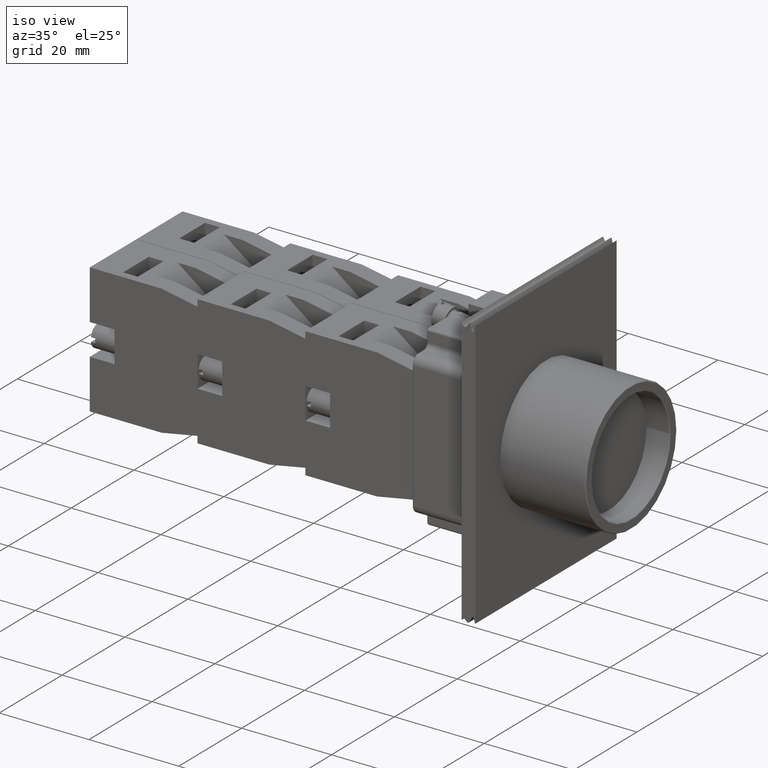
[diagram: clean part render]
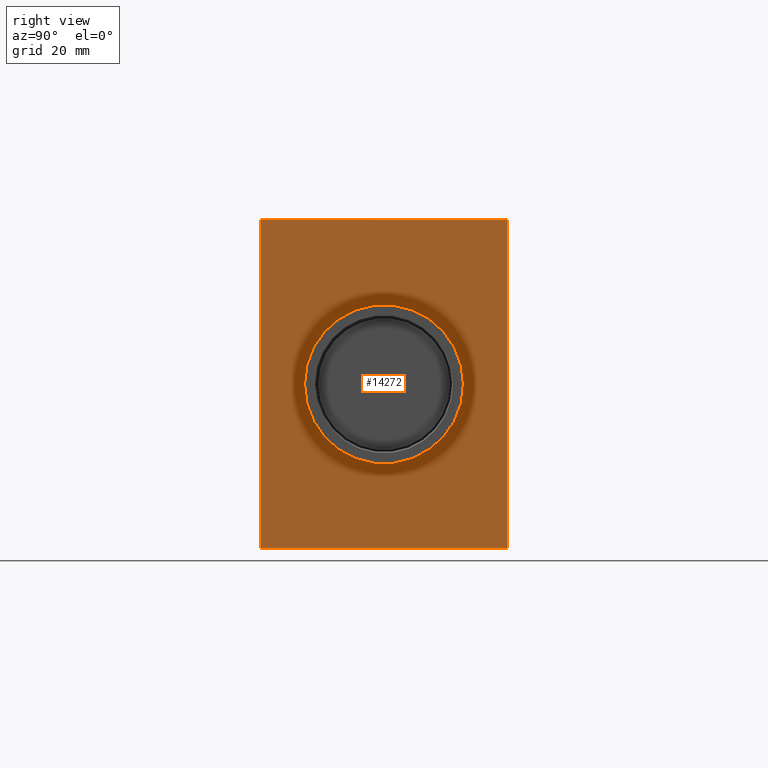
[diagram: tour spotlight — one face highlighted and labeled with its STEP entity id]
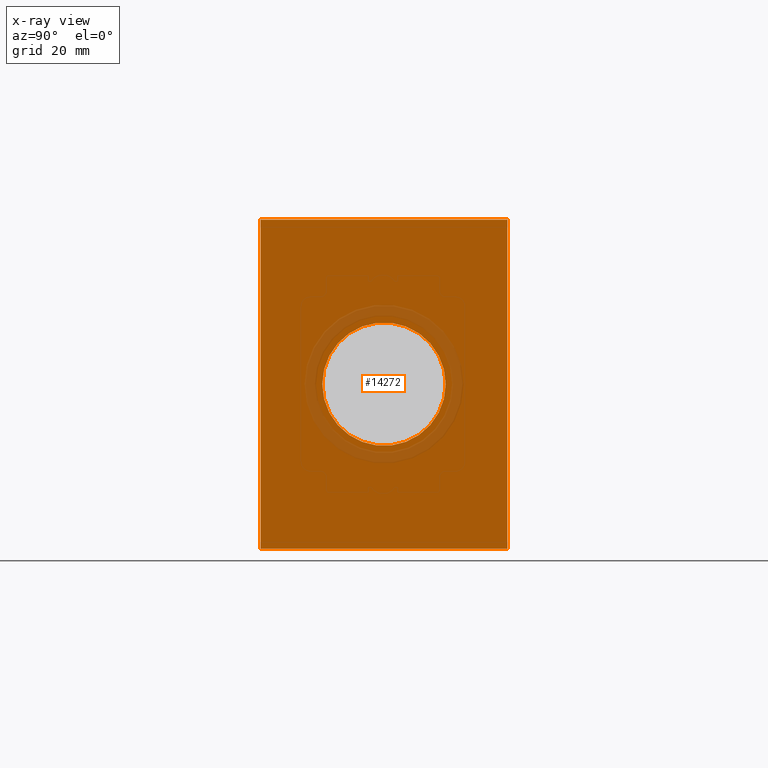
[diagram: x-ray of the same camera — body ghosted, this tour face saturated]
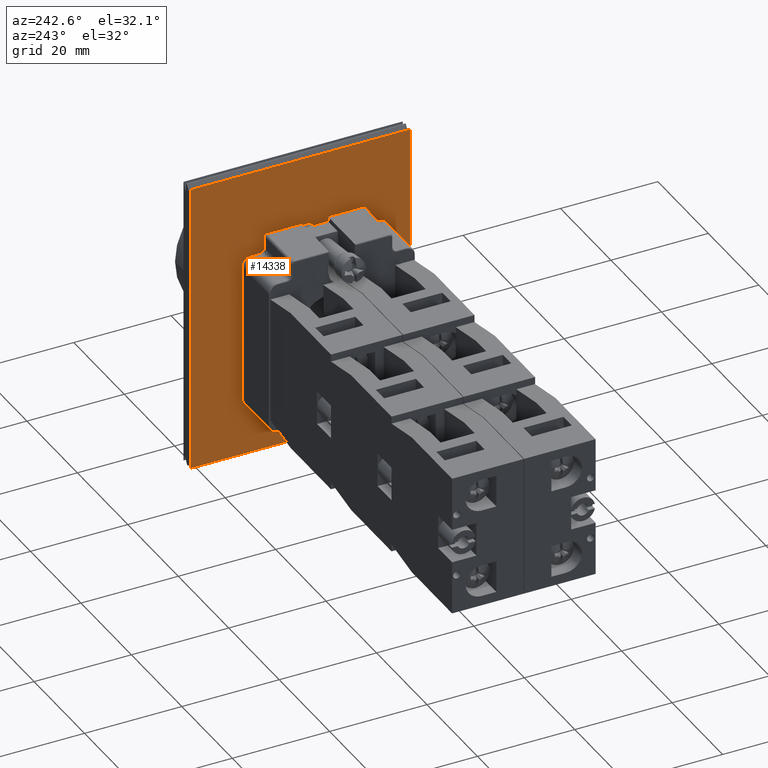
[diagram: tour spotlight — one face highlighted and labeled with its STEP entity id]
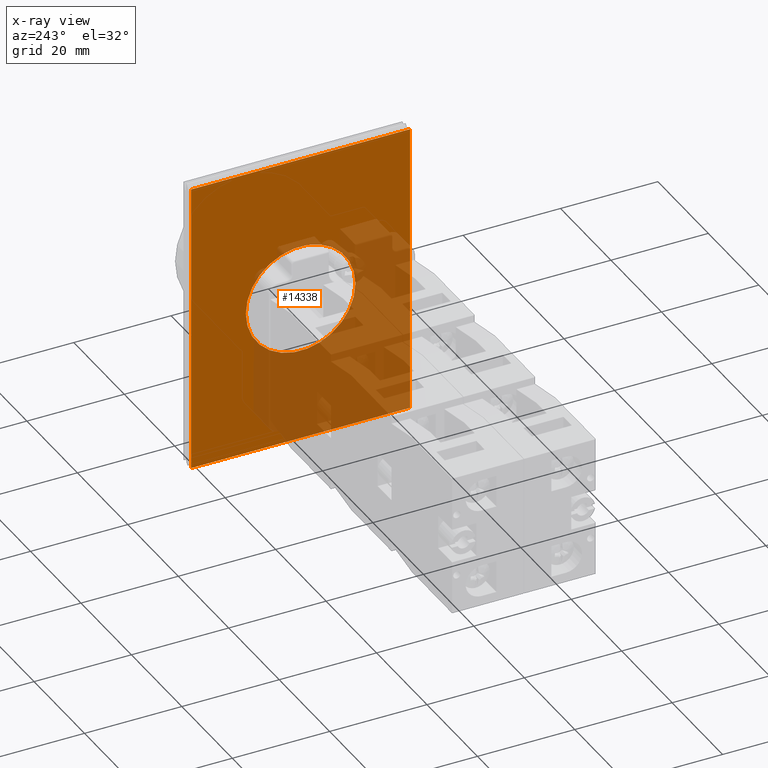
[diagram: x-ray of the same camera — body ghosted, this tour face saturated]
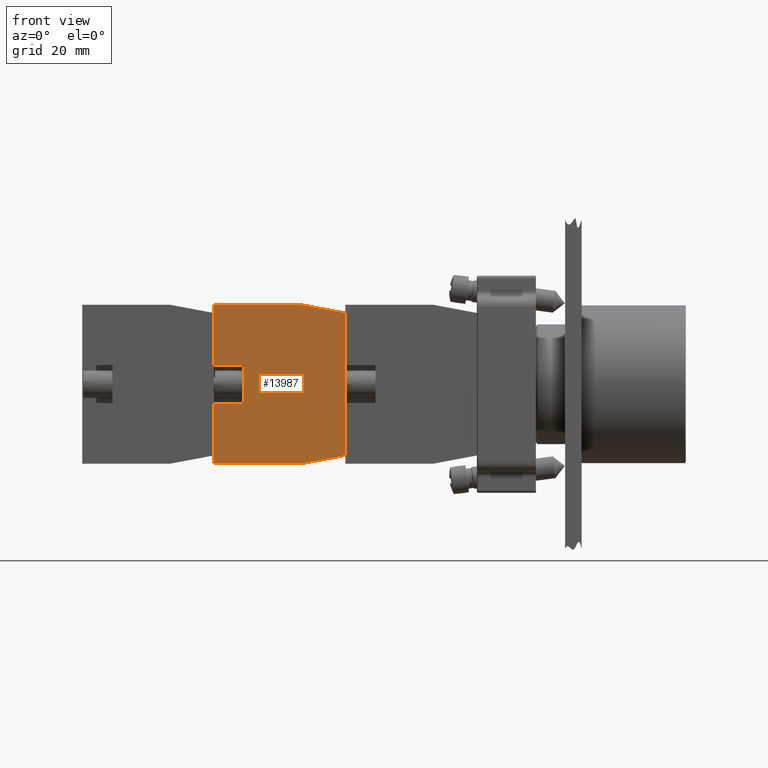
[diagram: tour spotlight — one face highlighted and labeled with its STEP entity id]
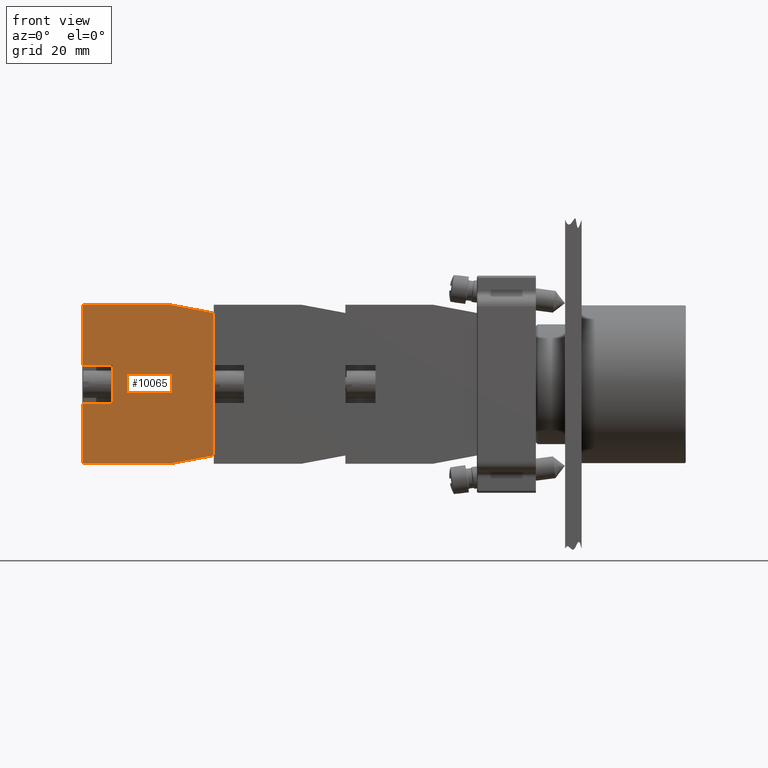
[diagram: tour spotlight — one face highlighted and labeled with its STEP entity id]
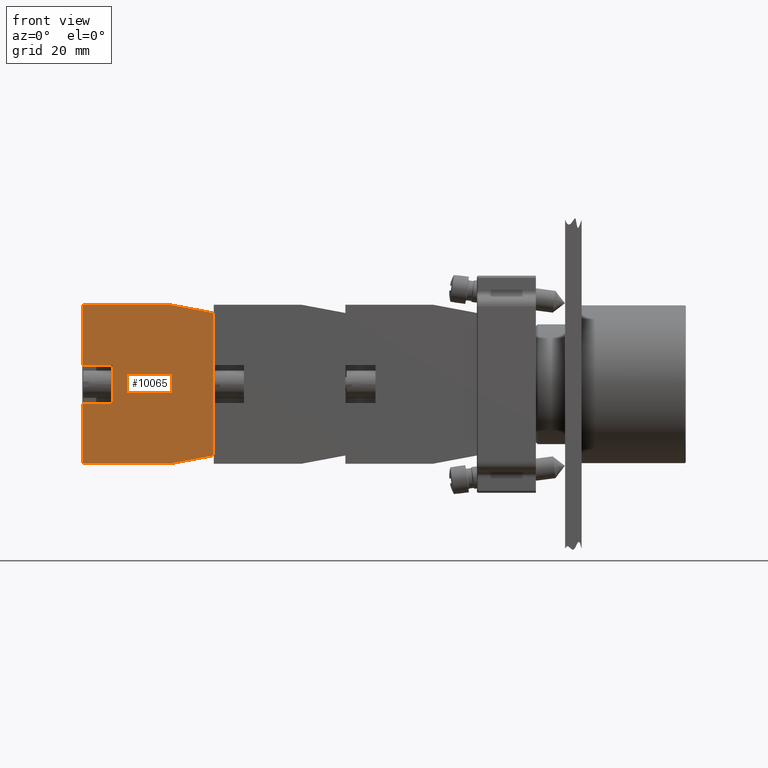
[diagram: tour spotlight — one face highlighted and labeled with its STEP entity id]
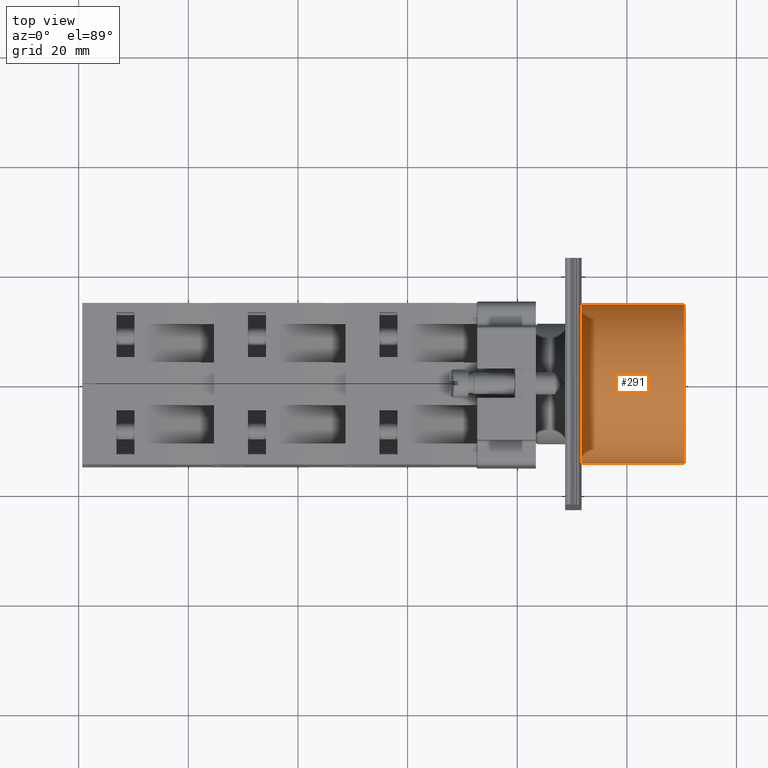
[diagram: tour spotlight — one face highlighted and labeled with its STEP entity id]
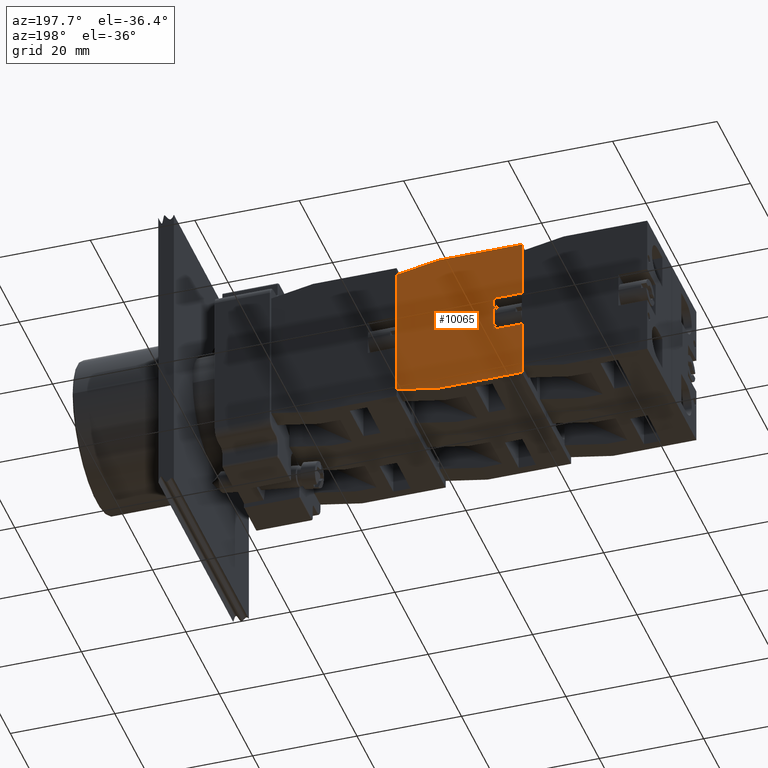
[diagram: tour spotlight — one face highlighted and labeled with its STEP entity id]
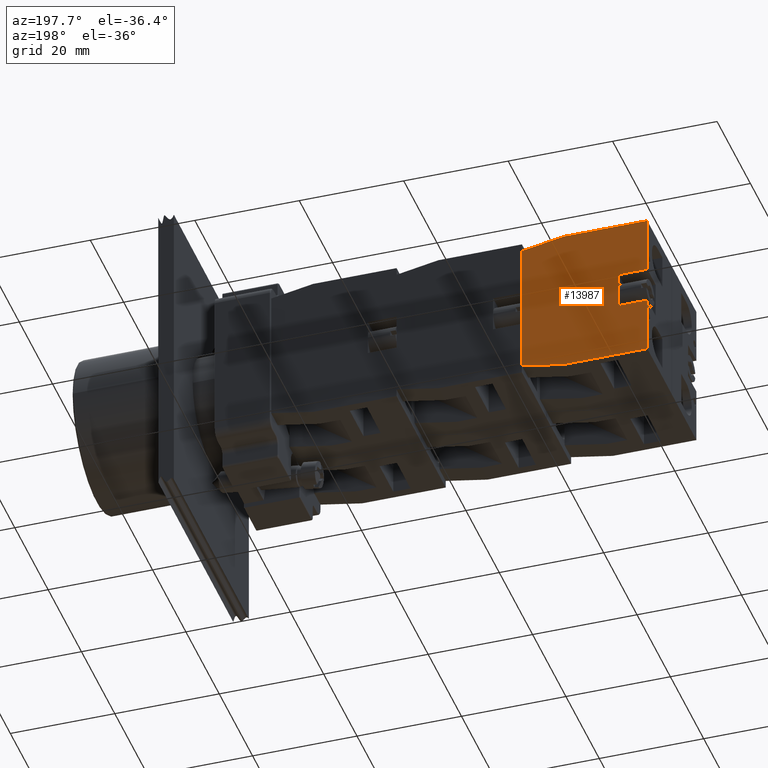
[diagram: tour spotlight — one face highlighted and labeled with its STEP entity id]
A machine part: a face-by-face anatomy tour. The part has 1213 B-rep faces; the first image is the clean iso view, then the 8 largest visible faces are spotlighted one at a time (largest first), each with its STEP entity span.

Face 1 — right view, entity #14272. An x-ray twin of the same camera follows (body ghosted, this face saturated) — the face is partly hidden behind the body. In plain terms, the highlighted planar face has unit normal (1, 0, 0).
Definition (entity closure, byte-faithful):
#14177=CARTESIAN_POINT('',(-12.704183619849175,-32.725398273954283,11.250000000000000));
#14178=VERTEX_POINT('',#14177);
#14179=CARTESIAN_POINT('',(-12.704183619849179,-32.725398273954283,22.500000000000000));
#14180=DIRECTION('',(-1.0,0.0,0.0));
#14181=DIRECTION('',(0.0,0.0,1.0));
#14182=AXIS2_PLACEMENT_3D('',#14179,#14180,#14181);
#14183=CIRCLE('',#14182,11.250000000000000);
#14184=EDGE_CURVE('',#14178,#14178,#14183,.T.);
#14202=CARTESIAN_POINT('',(-12.704183619849179,-2.725398273954287,45.0));
#14203=VERTEX_POINT('',#14202);
#14212=CARTESIAN_POINT('',(-12.704183619849179,-2.725398273954287,0.0));
#14213=VERTEX_POINT('',#14212);
#14214=CARTESIAN_POINT('',(-12.704183619849179,-2.725398273954287,0.0));
#14215=DIRECTION('',(0.0,0.0,1.0));
#14216=VECTOR('',#14215,45.0);
#14217=LINE('',#14214,#14216);
#14218=EDGE_CURVE('',#14213,#14203,#14217,.T.);
#14239=CARTESIAN_POINT('',(-12.704183619849179,-2.725398273954287,0.0));
#14240=DIRECTION('',(1.0,0.0,0.0));
#14241=DIRECTION('',(0.0,0.0,-1.0));
#14242=AXIS2_PLACEMENT_3D('',#14239,#14240,#14241);
#14243=PLANE('',#14242);
#14244=CARTESIAN_POINT('',(-12.704183619849172,-62.725398273954283,45.0));
#14245=VERTEX_POINT('',#14244);
#14246=CARTESIAN_POINT('',(-12.704183619849179,-2.725398273954287,45.0));
#14247=DIRECTION('',(0.0,-1.0,0.0));
#14248=VECTOR('',#14247,60.0);
#14249=LINE('',#14246,#14248);
#14250=EDGE_CURVE('',#14203,#14245,#14249,.T.);
#14251=ORIENTED_EDGE('',*,*,#14250,.T.);
#14252=CARTESIAN_POINT('',(-12.704183619849172,-62.725398273954283,0.0));
#14253=VERTEX_POINT('',#14252);
#14254=CARTESIAN_POINT('',(-12.704183619849172,-62.725398273954283,0.0));
#14255=DIRECTION('',(0.0,0.0,1.0));
#14256=VECTOR('',#14255,45.0);
#14257=LINE('',#14254,#14256);
#14258=EDGE_CURVE('',#14253,#14245,#14257,.T.);
#14259=ORIENTED_EDGE('',*,*,#14258,.F.);
#14260=CARTESIAN_POINT('',(-12.704183619849172,-62.725398273954283,0.0));
#14261=DIRECTION('',(0.0,1.0,0.0));
#14262=VECTOR('',#14261,60.0);
#14263=LINE('',#14260,#14262);
#14264=EDGE_CURVE('',#14253,#14213,#14263,.T.);
#14265=ORIENTED_EDGE('',*,*,#14264,.T.);
#14266=ORIENTED_EDGE('',*,*,#14218,.T.);
#14267=EDGE_LOOP('',(#14251,#14259,#14265,#14266));
#14268=FACE_OUTER_BOUND('',#14267,.T.);
#14269=ORIENTED_EDGE('',*,*,#14184,.T.);
#14270=EDGE_LOOP('',(#14269));
#14271=FACE_BOUND('',#14270,.T.);
#14272=ADVANCED_FACE('',(#14268,#14271),#14243,.T.);

Face 2 — auxiliary view, entity #14338. An x-ray twin of the same camera follows (body ghosted, this face saturated) — the face is partly hidden behind the body. In plain terms, the highlighted planar face has unit normal (-1, -0, -0).
Definition (entity closure, byte-faithful):
#14166=CARTESIAN_POINT('',(-15.704183619849179,-32.725398273954283,11.250000000000000));
#14167=VERTEX_POINT('',#14166);
#14168=CARTESIAN_POINT('',(-15.704183619849179,-32.725398273954283,22.500000000000000));
#14169=DIRECTION('',(1.0,0.0,0.0));
#14170=DIRECTION('',(0.0,0.0,1.0));
#14171=AXIS2_PLACEMENT_3D('',#14168,#14169,#14170);
#14172=CIRCLE('',#14171,11.250000000000000);
#14173=EDGE_CURVE('',#14167,#14167,#14172,.T.);
#14200=CARTESIAN_POINT('',(-15.704183619849179,-2.725398273954287,45.0));
#14201=VERTEX_POINT('',#14200);
#14220=CARTESIAN_POINT('',(-15.704183619849179,-2.725398273954287,0.0));
#14221=VERTEX_POINT('',#14220);
#14230=CARTESIAN_POINT('',(-15.704183619849179,-2.725398273954287,0.0));
#14231=DIRECTION('',(0.0,0.0,1.0));
#14232=VECTOR('',#14231,45.0);
#14233=LINE('',#14230,#14232);
#14234=EDGE_CURVE('',#14221,#14201,#14233,.T.);
#14284=CARTESIAN_POINT('',(-15.704183619849179,-62.725398273954283,45.0));
#14285=VERTEX_POINT('',#14284);
#14294=CARTESIAN_POINT('',(-15.704183619849179,-62.725398273954283,0.0));
#14295=VERTEX_POINT('',#14294);
#14296=CARTESIAN_POINT('',(-15.704183619849179,-62.725398273954283,0.0));
#14297=DIRECTION('',(0.0,0.0,1.0));
#14298=VECTOR('',#14297,45.0);
#14299=LINE('',#14296,#14298);
#14300=EDGE_CURVE('',#14295,#14285,#14299,.T.);
#14314=CARTESIAN_POINT('',(-15.704183619849179,-62.725398273954283,0.0));
#14315=DIRECTION('',(-1.0,0.0,0.0));
#14316=DIRECTION('',(0.0,0.0,1.0));
#14317=AXIS2_PLACEMENT_3D('',#14314,#14315,#14316);
#14318=PLANE('',#14317);
#14319=CARTESIAN_POINT('',(-15.704183619849179,-62.725398273954283,45.0));
#14320=DIRECTION('',(0.0,1.0,0.0));
#14321=VECTOR('',#14320,60.0);
#14322=LINE('',#14319,#14321);
#14323=EDGE_CURVE('',#14285,#14201,#14322,.T.);
#14324=ORIENTED_EDGE('',*,*,#14323,.T.);
#14325=ORIENTED_EDGE('',*,*,#14234,.F.);
#14326=CARTESIAN_POINT('',(-15.704183619849179,-2.725398273954287,0.0));
#14327=DIRECTION('',(0.0,-1.0,0.0));
#14328=VECTOR('',#14327,60.0);
#14329=LINE('',#14326,#14328);
#14330=EDGE_CURVE('',#14221,#14295,#14329,.T.);
#14331=ORIENTED_EDGE('',*,*,#14330,.T.);
#14332=ORIENTED_EDGE('',*,*,#14300,.T.);
#14333=EDGE_LOOP('',(#14324,#14325,#14331,#14332));
#14334=FACE_OUTER_BOUND('',#14333,.T.);
#14335=ORIENTED_EDGE('',*,*,#14173,.T.);
#14336=EDGE_LOOP('',(#14335));
#14337=FACE_BOUND('',#14336,.T.);
#14338=ADVANCED_FACE('',(#14334,#14337),#14318,.T.);

Face 3 — front view, entity #13987. In plain terms, the highlighted planar face has unit normal (-0, -1, 0).
Definition (entity closure, byte-faithful):
#12290=CARTESIAN_POINT('',(-44.936741828918457,7.797073323279626,14.699999999999999));
#12291=VERTEX_POINT('',#12290);
#12298=CARTESIAN_POINT('',(-44.936741828918471,23.797073323279623,14.699999999999999));
#12299=VERTEX_POINT('',#12298);
#12300=CARTESIAN_POINT('',(-44.936741828918457,7.797073323279626,14.699999999999999));
#12301=DIRECTION('',(0.0,1.0,0.0));
#12302=VECTOR('',#12301,15.999999999999996);
#12303=LINE('',#12300,#12302);
#12304=EDGE_CURVE('',#12291,#12299,#12303,.T.);
#12371=CARTESIAN_POINT('',(-43.436741828918457,-0.202926676720380,14.699999999999999));
#12372=VERTEX_POINT('',#12371);
#12379=CARTESIAN_POINT('',(-43.436741828918457,-0.202926676720380,14.699999999999999));
#12380=DIRECTION('',(-0.184288535050185,0.982872186934322,0.0));
#12381=VECTOR('',#12380,8.139410298049860);
#12382=LINE('',#12379,#12381);
#12383=EDGE_CURVE('',#12372,#12291,#12382,.T.);
#12522=CARTESIAN_POINT('',(-17.436741828918457,-0.202926676720377,14.699999999999999));
#12523=VERTEX_POINT('',#12522);
#12530=CARTESIAN_POINT('',(-17.436741828918457,-0.202926676720377,14.699999999999999));
#12531=DIRECTION('',(-1.0,0.0,0.0));
#12532=VECTOR('',#12531,26.0);
#12533=LINE('',#12530,#12532);
#12534=EDGE_CURVE('',#12523,#12372,#12533,.T.);
#12615=CARTESIAN_POINT('',(-15.936741828918466,7.797073323279626,14.699999999999999));
#12616=VERTEX_POINT('',#12615);
#12623=CARTESIAN_POINT('',(-15.936741828918466,7.797073323279626,14.699999999999999));
#12624=DIRECTION('',(-0.184288535050184,-0.982872186934322,0.0));
#12625=VECTOR('',#12624,8.139410298049855);
#12626=LINE('',#12623,#12625);
#12627=EDGE_CURVE('',#12616,#12523,#12626,.T.);
#13722=CARTESIAN_POINT('',(-26.936741828918468,18.297073323279626,14.699999999999999));
#13723=VERTEX_POINT('',#13722);
#13732=CARTESIAN_POINT('',(-26.936741828918468,23.797073323279626,14.699999999999999));
#13733=VERTEX_POINT('',#13732);
#13734=CARTESIAN_POINT('',(-26.936741828918468,23.797073323279626,14.699999999999999));
#13735=DIRECTION('',(0.0,-1.0,0.0));
#13736=VECTOR('',#13735,5.500000000000000);
#13737=LINE('',#13734,#13736);
#13738=EDGE_CURVE('',#13733,#13723,#13737,.T.);
#13793=CARTESIAN_POINT('',(-33.936741828918464,18.297073323279619,14.699999999999999));
#13794=VERTEX_POINT('',#13793);
#13802=CARTESIAN_POINT('',(-33.936741828918464,23.797073323279623,14.699999999999999));
#13803=VERTEX_POINT('',#13802);
#13810=CARTESIAN_POINT('',(-33.936741828918464,18.297073323279619,14.699999999999999));
#13811=DIRECTION('',(0.0,1.0,0.0));
#13812=VECTOR('',#13811,5.500000000000004);
#13813=LINE('',#13810,#13812);
#13814=EDGE_CURVE('',#13794,#13803,#13813,.T.);
#13827=CARTESIAN_POINT('',(-26.936741828918468,18.297073323279626,14.699999999999999));
#13828=DIRECTION('',(-1.0,0.0,0.0));
#13829=VECTOR('',#13828,6.999999999999996);
#13830=LINE('',#13827,#13829);
#13831=EDGE_CURVE('',#13723,#13794,#13830,.T.);
#13847=CARTESIAN_POINT('',(-15.936741828918466,23.797073323279626,14.699999999999999));
#13848=VERTEX_POINT('',#13847);
#13849=CARTESIAN_POINT('',(-26.936741828918468,23.797073323279626,14.699999999999999));
#13850=DIRECTION('',(1.0,0.0,0.0));
#13851=VECTOR('',#13850,11.000000000000002);
#13852=LINE('',#13849,#13851);
#13853=EDGE_CURVE('',#13733,#13848,#13852,.T.);
#13870=CARTESIAN_POINT('',(-44.936741828918471,23.797073323279623,14.699999999999999));
#13871=DIRECTION('',(1.0,0.0,0.0));
#13872=VECTOR('',#13871,11.000000000000007);
#13873=LINE('',#13870,#13872);
#13874=EDGE_CURVE('',#12299,#13803,#13873,.T.);
#13918=CARTESIAN_POINT('',(-15.936741828918466,23.797073323279626,14.699999999999999));
#13919=DIRECTION('',(0.0,-1.0,0.0));
#13920=VECTOR('',#13919,16.0);
#13921=LINE('',#13918,#13920);
#13922=EDGE_CURVE('',#13848,#12616,#13921,.T.);
#13970=CARTESIAN_POINT('',(-30.436741828918457,12.124046801833057,14.699999999999999));
#13971=DIRECTION('',(0.0,0.0,1.0));
#13972=DIRECTION('',(1.0,0.0,0.0));
#13973=AXIS2_PLACEMENT_3D('',#13970,#13971,#13972);
#13974=PLANE('',#13973);
#13975=ORIENTED_EDGE('',*,*,#13814,.T.);
#13976=ORIENTED_EDGE('',*,*,#13874,.F.);
#13977=ORIENTED_EDGE('',*,*,#12304,.F.);
#13978=ORIENTED_EDGE('',*,*,#12383,.F.);
#13979=ORIENTED_EDGE('',*,*,#12534,.F.);
#13980=ORIENTED_EDGE('',*,*,#12627,.F.);
#13981=ORIENTED_EDGE('',*,*,#13922,.F.);
#13982=ORIENTED_EDGE('',*,*,#13853,.F.);
#13983=ORIENTED_EDGE('',*,*,#13738,.T.);
#13984=ORIENTED_EDGE('',*,*,#13831,.T.);
#13985=EDGE_LOOP('',(#13975,#13976,#13977,#13978,#13979,#13980,#13981,#13982,#13983,#13984));
#13986=FACE_OUTER_BOUND('',#13985,.T.);
#13987=ADVANCED_FACE('',(#13986),#13974,.T.);

Face 4 — front view, entity #10065. In plain terms, the highlighted planar face has unit normal (0, -1, 0).
Definition (entity closure, byte-faithful):
#8368=CARTESIAN_POINT('',(-44.936741828918457,7.797073323279626,14.699999999999999));
#8369=VERTEX_POINT('',#8368);
#8376=CARTESIAN_POINT('',(-44.936741828918471,23.797073323279623,14.699999999999999));
#8377=VERTEX_POINT('',#8376);
#8378=CARTESIAN_POINT('',(-44.936741828918457,7.797073323279626,14.699999999999999));
#8379=DIRECTION('',(0.0,1.0,0.0));
#8380=VECTOR('',#8379,15.999999999999996);
#8381=LINE('',#8378,#8380);
#8382=EDGE_CURVE('',#8369,#8377,#8381,.T.);
#8449=CARTESIAN_POINT('',(-43.436741828918457,-0.202926676720380,14.699999999999999));
#8450=VERTEX_POINT('',#8449);
#8457=CARTESIAN_POINT('',(-43.436741828918457,-0.202926676720380,14.699999999999999));
#8458=DIRECTION('',(-0.184288535050185,0.982872186934322,0.0));
#8459=VECTOR('',#8458,8.139410298049860);
#8460=LINE('',#8457,#8459);
#8461=EDGE_CURVE('',#8450,#8369,#8460,.T.);
#8600=CARTESIAN_POINT('',(-17.436741828918457,-0.202926676720377,14.699999999999999));
#8601=VERTEX_POINT('',#8600);
#8608=CARTESIAN_POINT('',(-17.436741828918457,-0.202926676720377,14.699999999999999));
#8609=DIRECTION('',(-1.0,0.0,0.0));
#8610=VECTOR('',#8609,26.0);
#8611=LINE('',#8608,#8610);
#8612=EDGE_CURVE('',#8601,#8450,#8611,.T.);
#8693=CARTESIAN_POINT('',(-15.936741828918466,7.797073323279626,14.699999999999999));
#8694=VERTEX_POINT('',#8693);
#8701=CARTESIAN_POINT('',(-15.936741828918466,7.797073323279626,14.699999999999999));
#8702=DIRECTION('',(-0.184288535050184,-0.982872186934322,0.0));
#8703=VECTOR('',#8702,8.139410298049855);
#8704=LINE('',#8701,#8703);
#8705=EDGE_CURVE('',#8694,#8601,#8704,.T.);
#9800=CARTESIAN_POINT('',(-26.936741828918468,18.297073323279626,14.699999999999999));
#9801=VERTEX_POINT('',#9800);
#9810=CARTESIAN_POINT('',(-26.936741828918468,23.797073323279626,14.699999999999999));
#9811=VERTEX_POINT('',#9810);
#9812=CARTESIAN_POINT('',(-26.936741828918468,23.797073323279626,14.699999999999999));
#9813=DIRECTION('',(0.0,-1.0,0.0));
#9814=VECTOR('',#9813,5.500000000000000);
#9815=LINE('',#9812,#9814);
#9816=EDGE_CURVE('',#9811,#9801,#9815,.T.);
#9871=CARTESIAN_POINT('',(-33.936741828918464,18.297073323279619,14.699999999999999));
#9872=VERTEX_POINT('',#9871);
#9880=CARTESIAN_POINT('',(-33.936741828918464,23.797073323279623,14.699999999999999));
#9881=VERTEX_POINT('',#9880);
#9888=CARTESIAN_POINT('',(-33.936741828918464,18.297073323279619,14.699999999999999));
#9889=DIRECTION('',(0.0,1.0,0.0));
#9890=VECTOR('',#9889,5.500000000000004);
#9891=LINE('',#9888,#9890);
#9892=EDGE_CURVE('',#9872,#9881,#9891,.T.);
#9905=CARTESIAN_POINT('',(-26.936741828918468,18.297073323279626,14.699999999999999));
#9906=DIRECTION('',(-1.0,0.0,0.0));
#9907=VECTOR('',#9906,6.999999999999996);
#9908=LINE('',#9905,#9907);
#9909=EDGE_CURVE('',#9801,#9872,#9908,.T.);
#9925=CARTESIAN_POINT('',(-15.936741828918466,23.797073323279626,14.699999999999999));
#9926=VERTEX_POINT('',#9925);
#9927=CARTESIAN_POINT('',(-26.936741828918468,23.797073323279626,14.699999999999999));
#9928=DIRECTION('',(1.0,0.0,0.0));
#9929=VECTOR('',#9928,11.000000000000002);
#9930=LINE('',#9927,#9929);
#9931=EDGE_CURVE('',#9811,#9926,#9930,.T.);
#9948=CARTESIAN_POINT('',(-44.936741828918471,23.797073323279623,14.699999999999999));
#9949=DIRECTION('',(1.0,0.0,0.0));
#9950=VECTOR('',#9949,11.000000000000007);
#9951=LINE('',#9948,#9950);
#9952=EDGE_CURVE('',#8377,#9881,#9951,.T.);
#9996=CARTESIAN_POINT('',(-15.936741828918466,23.797073323279626,14.699999999999999));
#9997=DIRECTION('',(0.0,-1.0,0.0));
#9998=VECTOR('',#9997,16.0);
#9999=LINE('',#9996,#9998);
#10000=EDGE_CURVE('',#9926,#8694,#9999,.T.);
#10048=CARTESIAN_POINT('',(-30.436741828918457,12.124046801833057,14.699999999999999));
#10049=DIRECTION('',(0.0,0.0,1.0));
#10050=DIRECTION('',(1.0,0.0,0.0));
#10051=AXIS2_PLACEMENT_3D('',#10048,#10049,#10050);
#10052=PLANE('',#10051);
#10053=ORIENTED_EDGE('',*,*,#9892,.T.);
#10054=ORIENTED_EDGE('',*,*,#9952,.F.);
#10055=ORIENTED_EDGE('',*,*,#8382,.F.);
#10056=ORIENTED_EDGE('',*,*,#8461,.F.);
#10057=ORIENTED_EDGE('',*,*,#8612,.F.);
#10058=ORIENTED_EDGE('',*,*,#8705,.F.);
#10059=ORIENTED_EDGE('',*,*,#10000,.F.);
#10060=ORIENTED_EDGE('',*,*,#9931,.F.);
#10061=ORIENTED_EDGE('',*,*,#9816,.T.);
#10062=ORIENTED_EDGE('',*,*,#9909,.T.);
#10063=EDGE_LOOP('',(#10053,#10054,#10055,#10056,#10057,#10058,#10059,#10060,#10061,#10062));
#10064=FACE_OUTER_BOUND('',#10063,.T.);
#10065=ADVANCED_FACE('',(#10064),#10052,.T.);

Face 5 — front view, entity #10065. In plain terms, the highlighted planar face has unit normal (-0, -1, 0).
Definition (entity closure, byte-faithful):
#8368=CARTESIAN_POINT('',(-44.936741828918457,7.797073323279626,14.699999999999999));
#8369=VERTEX_POINT('',#8368);
#8376=CARTESIAN_POINT('',(-44.936741828918471,23.797073323279623,14.699999999999999));
#8377=VERTEX_POINT('',#8376);
#8378=CARTESIAN_POINT('',(-44.936741828918457,7.797073323279626,14.699999999999999));
#8379=DIRECTION('',(0.0,1.0,0.0));
#8380=VECTOR('',#8379,15.999999999999996);
#8381=LINE('',#8378,#8380);
#8382=EDGE_CURVE('',#8369,#8377,#8381,.T.);
#8449=CARTESIAN_POINT('',(-43.436741828918457,-0.202926676720380,14.699999999999999));
#8450=VERTEX_POINT('',#8449);
#8457=CARTESIAN_POINT('',(-43.436741828918457,-0.202926676720380,14.699999999999999));
#8458=DIRECTION('',(-0.184288535050185,0.982872186934322,0.0));
#8459=VECTOR('',#8458,8.139410298049860);
#8460=LINE('',#8457,#8459);
#8461=EDGE_CURVE('',#8450,#8369,#8460,.T.);
#8600=CARTESIAN_POINT('',(-17.436741828918457,-0.202926676720377,14.699999999999999));
#8601=VERTEX_POINT('',#8600);
#8608=CARTESIAN_POINT('',(-17.436741828918457,-0.202926676720377,14.699999999999999));
#8609=DIRECTION('',(-1.0,0.0,0.0));
#8610=VECTOR('',#8609,26.0);
#8611=LINE('',#8608,#8610);
#8612=EDGE_CURVE('',#8601,#8450,#8611,.T.);
#8693=CARTESIAN_POINT('',(-15.936741828918466,7.797073323279626,14.699999999999999));
#8694=VERTEX_POINT('',#8693);
#8701=CARTESIAN_POINT('',(-15.936741828918466,7.797073323279626,14.699999999999999));
#8702=DIRECTION('',(-0.184288535050184,-0.982872186934322,0.0));
#8703=VECTOR('',#8702,8.139410298049855);
#8704=LINE('',#8701,#8703);
#8705=EDGE_CURVE('',#8694,#8601,#8704,.T.);
#9800=CARTESIAN_POINT('',(-26.936741828918468,18.297073323279626,14.699999999999999));
#9801=VERTEX_POINT('',#9800);
#9810=CARTESIAN_POINT('',(-26.936741828918468,23.797073323279626,14.699999999999999));
#9811=VERTEX_POINT('',#9810);
#9812=CARTESIAN_POINT('',(-26.936741828918468,23.797073323279626,14.699999999999999));
#9813=DIRECTION('',(0.0,-1.0,0.0));
#9814=VECTOR('',#9813,5.500000000000000);
#9815=LINE('',#9812,#9814);
#9816=EDGE_CURVE('',#9811,#9801,#9815,.T.);
#9871=CARTESIAN_POINT('',(-33.936741828918464,18.297073323279619,14.699999999999999));
#9872=VERTEX_POINT('',#9871);
#9880=CARTESIAN_POINT('',(-33.936741828918464,23.797073323279623,14.699999999999999));
#9881=VERTEX_POINT('',#9880);
#9888=CARTESIAN_POINT('',(-33.936741828918464,18.297073323279619,14.699999999999999));
#9889=DIRECTION('',(0.0,1.0,0.0));
#9890=VECTOR('',#9889,5.500000000000004);
#9891=LINE('',#9888,#9890);
#9892=EDGE_CURVE('',#9872,#9881,#9891,.T.);
#9905=CARTESIAN_POINT('',(-26.936741828918468,18.297073323279626,14.699999999999999));
#9906=DIRECTION('',(-1.0,0.0,0.0));
#9907=VECTOR('',#9906,6.999999999999996);
#9908=LINE('',#9905,#9907);
#9909=EDGE_CURVE('',#9801,#9872,#9908,.T.);
#9925=CARTESIAN_POINT('',(-15.936741828918466,23.797073323279626,14.699999999999999));
#9926=VERTEX_POINT('',#9925);
#9927=CARTESIAN_POINT('',(-26.936741828918468,23.797073323279626,14.699999999999999));
#9928=DIRECTION('',(1.0,0.0,0.0));
#9929=VECTOR('',#9928,11.000000000000002);
#9930=LINE('',#9927,#9929);
#9931=EDGE_CURVE('',#9811,#9926,#9930,.T.);
#9948=CARTESIAN_POINT('',(-44.936741828918471,23.797073323279623,14.699999999999999));
#9949=DIRECTION('',(1.0,0.0,0.0));
#9950=VECTOR('',#9949,11.000000000000007);
#9951=LINE('',#9948,#9950);
#9952=EDGE_CURVE('',#8377,#9881,#9951,.T.);
#9996=CARTESIAN_POINT('',(-15.936741828918466,23.797073323279626,14.699999999999999));
#9997=DIRECTION('',(0.0,-1.0,0.0));
#9998=VECTOR('',#9997,16.0);
#9999=LINE('',#9996,#9998);
#10000=EDGE_CURVE('',#9926,#8694,#9999,.T.);
#10048=CARTESIAN_POINT('',(-30.436741828918457,12.124046801833057,14.699999999999999));
#10049=DIRECTION('',(0.0,0.0,1.0));
#10050=DIRECTION('',(1.0,0.0,0.0));
#10051=AXIS2_PLACEMENT_3D('',#10048,#10049,#10050);
#10052=PLANE('',#10051);
#10053=ORIENTED_EDGE('',*,*,#9892,.T.);
#10054=ORIENTED_EDGE('',*,*,#9952,.F.);
#10055=ORIENTED_EDGE('',*,*,#8382,.F.);
#10056=ORIENTED_EDGE('',*,*,#8461,.F.);
#10057=ORIENTED_EDGE('',*,*,#8612,.F.);
#10058=ORIENTED_EDGE('',*,*,#8705,.F.);
#10059=ORIENTED_EDGE('',*,*,#10000,.F.);
#10060=ORIENTED_EDGE('',*,*,#9931,.F.);
#10061=ORIENTED_EDGE('',*,*,#9816,.T.);
#10062=ORIENTED_EDGE('',*,*,#9909,.T.);
#10063=EDGE_LOOP('',(#10053,#10054,#10055,#10056,#10057,#10058,#10059,#10060,#10061,#10062));
#10064=FACE_OUTER_BOUND('',#10063,.T.);
#10065=ADVANCED_FACE('',(#10064),#10052,.T.);

Face 6 — top view, entity #291. In plain terms, the highlighted cylindrical surface (bore or boss wall) has radius 14.5 mm, axis along (1, 0, 0).
Definition (entity closure, byte-faithful):
#229=CARTESIAN_POINT('',(10.498486254077104,14.468314320504646,0.0));
#230=VERTEX_POINT('',#229);
#231=CARTESIAN_POINT('',(10.498486254077106,-0.031685679495352,0.0));
#232=DIRECTION('',(1.0,0.0,0.0));
#233=DIRECTION('',(0.0,-1.0,0.0));
#234=AXIS2_PLACEMENT_3D('',#231,#232,#233);
#235=CIRCLE('',#234,14.500000000000000);
#236=EDGE_CURVE('',#230,#230,#235,.T.);
#272=CARTESIAN_POINT('',(1.248486254077101,-0.031685679495353,0.0));
#273=DIRECTION('',(1.0,1.413946E-016,0.0));
#274=DIRECTION('',(0.0,1.0,0.0));
#275=AXIS2_PLACEMENT_3D('',#272,#273,#274);
#276=CYLINDRICAL_SURFACE('',#275,14.500000000000000);
#277=CARTESIAN_POINT('',(-8.251513745922900,14.468314320504641,0.0));
#278=VERTEX_POINT('',#277);
#279=CARTESIAN_POINT('',(-8.251513745922898,-0.031685679495354,0.0));
#280=DIRECTION('',(1.0,0.0,0.0));
#281=DIRECTION('',(0.0,1.0,0.0));
#282=AXIS2_PLACEMENT_3D('',#279,#280,#281);
#283=CIRCLE('',#282,14.499999999999995);
#284=EDGE_CURVE('',#278,#278,#283,.T.);
#285=ORIENTED_EDGE('',*,*,#284,.T.);
#286=EDGE_LOOP('',(#285));
#287=FACE_OUTER_BOUND('',#286,.T.);
#288=ORIENTED_EDGE('',*,*,#236,.F.);
#289=EDGE_LOOP('',(#288));
#290=FACE_BOUND('',#289,.T.);
#291=ADVANCED_FACE('',(#287,#290),#276,.T.);

Face 7 — auxiliary view, entity #10065. In plain terms, the highlighted planar face has unit normal (-0, 1, -0).
Definition (entity closure, byte-faithful):
#8368=CARTESIAN_POINT('',(-44.936741828918457,7.797073323279626,14.699999999999999));
#8369=VERTEX_POINT('',#8368);
#8376=CARTESIAN_POINT('',(-44.936741828918471,23.797073323279623,14.699999999999999));
#8377=VERTEX_POINT('',#8376);
#8378=CARTESIAN_POINT('',(-44.936741828918457,7.797073323279626,14.699999999999999));
#8379=DIRECTION('',(0.0,1.0,0.0));
#8380=VECTOR('',#8379,15.999999999999996);
#8381=LINE('',#8378,#8380);
#8382=EDGE_CURVE('',#8369,#8377,#8381,.T.);
#8449=CARTESIAN_POINT('',(-43.436741828918457,-0.202926676720380,14.699999999999999));
#8450=VERTEX_POINT('',#8449);
#8457=CARTESIAN_POINT('',(-43.436741828918457,-0.202926676720380,14.699999999999999));
#8458=DIRECTION('',(-0.184288535050185,0.982872186934322,0.0));
#8459=VECTOR('',#8458,8.139410298049860);
#8460=LINE('',#8457,#8459);
#8461=EDGE_CURVE('',#8450,#8369,#8460,.T.);
#8600=CARTESIAN_POINT('',(-17.436741828918457,-0.202926676720377,14.699999999999999));
#8601=VERTEX_POINT('',#8600);
#8608=CARTESIAN_POINT('',(-17.436741828918457,-0.202926676720377,14.699999999999999));
#8609=DIRECTION('',(-1.0,0.0,0.0));
#8610=VECTOR('',#8609,26.0);
#8611=LINE('',#8608,#8610);
#8612=EDGE_CURVE('',#8601,#8450,#8611,.T.);
#8693=CARTESIAN_POINT('',(-15.936741828918466,7.797073323279626,14.699999999999999));
#8694=VERTEX_POINT('',#8693);
#8701=CARTESIAN_POINT('',(-15.936741828918466,7.797073323279626,14.699999999999999));
#8702=DIRECTION('',(-0.184288535050184,-0.982872186934322,0.0));
#8703=VECTOR('',#8702,8.139410298049855);
#8704=LINE('',#8701,#8703);
#8705=EDGE_CURVE('',#8694,#8601,#8704,.T.);
#9800=CARTESIAN_POINT('',(-26.936741828918468,18.297073323279626,14.699999999999999));
#9801=VERTEX_POINT('',#9800);
#9810=CARTESIAN_POINT('',(-26.936741828918468,23.797073323279626,14.699999999999999));
#9811=VERTEX_POINT('',#9810);
#9812=CARTESIAN_POINT('',(-26.936741828918468,23.797073323279626,14.699999999999999));
#9813=DIRECTION('',(0.0,-1.0,0.0));
#9814=VECTOR('',#9813,5.500000000000000);
#9815=LINE('',#9812,#9814);
#9816=EDGE_CURVE('',#9811,#9801,#9815,.T.);
#9871=CARTESIAN_POINT('',(-33.936741828918464,18.297073323279619,14.699999999999999));
#9872=VERTEX_POINT('',#9871);
#9880=CARTESIAN_POINT('',(-33.936741828918464,23.797073323279623,14.699999999999999));
#9881=VERTEX_POINT('',#9880);
#9888=CARTESIAN_POINT('',(-33.936741828918464,18.297073323279619,14.699999999999999));
#9889=DIRECTION('',(0.0,1.0,0.0));
#9890=VECTOR('',#9889,5.500000000000004);
#9891=LINE('',#9888,#9890);
#9892=EDGE_CURVE('',#9872,#9881,#9891,.T.);
#9905=CARTESIAN_POINT('',(-26.936741828918468,18.297073323279626,14.699999999999999));
#9906=DIRECTION('',(-1.0,0.0,0.0));
#9907=VECTOR('',#9906,6.999999999999996);
#9908=LINE('',#9905,#9907);
#9909=EDGE_CURVE('',#9801,#9872,#9908,.T.);
#9925=CARTESIAN_POINT('',(-15.936741828918466,23.797073323279626,14.699999999999999));
#9926=VERTEX_POINT('',#9925);
#9927=CARTESIAN_POINT('',(-26.936741828918468,23.797073323279626,14.699999999999999));
#9928=DIRECTION('',(1.0,0.0,0.0));
#9929=VECTOR('',#9928,11.000000000000002);
#9930=LINE('',#9927,#9929);
#9931=EDGE_CURVE('',#9811,#9926,#9930,.T.);
#9948=CARTESIAN_POINT('',(-44.936741828918471,23.797073323279623,14.699999999999999));
#9949=DIRECTION('',(1.0,0.0,0.0));
#9950=VECTOR('',#9949,11.000000000000007);
#9951=LINE('',#9948,#9950);
#9952=EDGE_CURVE('',#8377,#9881,#9951,.T.);
#9996=CARTESIAN_POINT('',(-15.936741828918466,23.797073323279626,14.699999999999999));
#9997=DIRECTION('',(0.0,-1.0,0.0));
#9998=VECTOR('',#9997,16.0);
#9999=LINE('',#9996,#9998);
#10000=EDGE_CURVE('',#9926,#8694,#9999,.T.);
#10048=CARTESIAN_POINT('',(-30.436741828918457,12.124046801833057,14.699999999999999));
#10049=DIRECTION('',(0.0,0.0,1.0));
#10050=DIRECTION('',(1.0,0.0,0.0));
#10051=AXIS2_PLACEMENT_3D('',#10048,#10049,#10050);
#10052=PLANE('',#10051);
#10053=ORIENTED_EDGE('',*,*,#9892,.T.);
#10054=ORIENTED_EDGE('',*,*,#9952,.F.);
#10055=ORIENTED_EDGE('',*,*,#8382,.F.);
#10056=ORIENTED_EDGE('',*,*,#8461,.F.);
#10057=ORIENTED_EDGE('',*,*,#8612,.F.);
#10058=ORIENTED_EDGE('',*,*,#8705,.F.);
#10059=ORIENTED_EDGE('',*,*,#10000,.F.);
#10060=ORIENTED_EDGE('',*,*,#9931,.F.);
#10061=ORIENTED_EDGE('',*,*,#9816,.T.);
#10062=ORIENTED_EDGE('',*,*,#9909,.T.);
#10063=EDGE_LOOP('',(#10053,#10054,#10055,#10056,#10057,#10058,#10059,#10060,#10061,#10062));
#10064=FACE_OUTER_BOUND('',#10063,.T.);
#10065=ADVANCED_FACE('',(#10064),#10052,.T.);

Face 8 — auxiliary view, entity #13987. In plain terms, the highlighted planar face has unit normal (-0, 1, -0).
Definition (entity closure, byte-faithful):
#12290=CARTESIAN_POINT('',(-44.936741828918457,7.797073323279626,14.699999999999999));
#12291=VERTEX_POINT('',#12290);
#12298=CARTESIAN_POINT('',(-44.936741828918471,23.797073323279623,14.699999999999999));
#12299=VERTEX_POINT('',#12298);
#12300=CARTESIAN_POINT('',(-44.936741828918457,7.797073323279626,14.699999999999999));
#12301=DIRECTION('',(0.0,1.0,0.0));
#12302=VECTOR('',#12301,15.999999999999996);
#12303=LINE('',#12300,#12302);
#12304=EDGE_CURVE('',#12291,#12299,#12303,.T.);
#12371=CARTESIAN_POINT('',(-43.436741828918457,-0.202926676720380,14.699999999999999));
#12372=VERTEX_POINT('',#12371);
#12379=CARTESIAN_POINT('',(-43.436741828918457,-0.202926676720380,14.699999999999999));
#12380=DIRECTION('',(-0.184288535050185,0.982872186934322,0.0));
#12381=VECTOR('',#12380,8.139410298049860);
#12382=LINE('',#12379,#12381);
#12383=EDGE_CURVE('',#12372,#12291,#12382,.T.);
#12522=CARTESIAN_POINT('',(-17.436741828918457,-0.202926676720377,14.699999999999999));
#12523=VERTEX_POINT('',#12522);
#12530=CARTESIAN_POINT('',(-17.436741828918457,-0.202926676720377,14.699999999999999));
#12531=DIRECTION('',(-1.0,0.0,0.0));
#12532=VECTOR('',#12531,26.0);
#12533=LINE('',#12530,#12532);
#12534=EDGE_CURVE('',#12523,#12372,#12533,.T.);
#12615=CARTESIAN_POINT('',(-15.936741828918466,7.797073323279626,14.699999999999999));
#12616=VERTEX_POINT('',#12615);
#12623=CARTESIAN_POINT('',(-15.936741828918466,7.797073323279626,14.699999999999999));
#12624=DIRECTION('',(-0.184288535050184,-0.982872186934322,0.0));
#12625=VECTOR('',#12624,8.139410298049855);
#12626=LINE('',#12623,#12625);
#12627=EDGE_CURVE('',#12616,#12523,#12626,.T.);
#13722=CARTESIAN_POINT('',(-26.936741828918468,18.297073323279626,14.699999999999999));
#13723=VERTEX_POINT('',#13722);
#13732=CARTESIAN_POINT('',(-26.936741828918468,23.797073323279626,14.699999999999999));
#13733=VERTEX_POINT('',#13732);
#13734=CARTESIAN_POINT('',(-26.936741828918468,23.797073323279626,14.699999999999999));
#13735=DIRECTION('',(0.0,-1.0,0.0));
#13736=VECTOR('',#13735,5.500000000000000);
#13737=LINE('',#13734,#13736);
#13738=EDGE_CURVE('',#13733,#13723,#13737,.T.);
#13793=CARTESIAN_POINT('',(-33.936741828918464,18.297073323279619,14.699999999999999));
#13794=VERTEX_POINT('',#13793);
#13802=CARTESIAN_POINT('',(-33.936741828918464,23.797073323279623,14.699999999999999));
#13803=VERTEX_POINT('',#13802);
#13810=CARTESIAN_POINT('',(-33.936741828918464,18.297073323279619,14.699999999999999));
#13811=DIRECTION('',(0.0,1.0,0.0));
#13812=VECTOR('',#13811,5.500000000000004);
#13813=LINE('',#13810,#13812);
#13814=EDGE_CURVE('',#13794,#13803,#13813,.T.);
#13827=CARTESIAN_POINT('',(-26.936741828918468,18.297073323279626,14.699999999999999));
#13828=DIRECTION('',(-1.0,0.0,0.0));
#13829=VECTOR('',#13828,6.999999999999996);
#13830=LINE('',#13827,#13829);
#13831=EDGE_CURVE('',#13723,#13794,#13830,.T.);
#13847=CARTESIAN_POINT('',(-15.936741828918466,23.797073323279626,14.699999999999999));
#13848=VERTEX_POINT('',#13847);
#13849=CARTESIAN_POINT('',(-26.936741828918468,23.797073323279626,14.699999999999999));
#13850=DIRECTION('',(1.0,0.0,0.0));
#13851=VECTOR('',#13850,11.000000000000002);
#13852=LINE('',#13849,#13851);
#13853=EDGE_CURVE('',#13733,#13848,#13852,.T.);
#13870=CARTESIAN_POINT('',(-44.936741828918471,23.797073323279623,14.699999999999999));
#13871=DIRECTION('',(1.0,0.0,0.0));
#13872=VECTOR('',#13871,11.000000000000007);
#13873=LINE('',#13870,#13872);
#13874=EDGE_CURVE('',#12299,#13803,#13873,.T.);
#13918=CARTESIAN_POINT('',(-15.936741828918466,23.797073323279626,14.699999999999999));
#13919=DIRECTION('',(0.0,-1.0,0.0));
#13920=VECTOR('',#13919,16.0);
#13921=LINE('',#13918,#13920);
#13922=EDGE_CURVE('',#13848,#12616,#13921,.T.);
#13970=CARTESIAN_POINT('',(-30.436741828918457,12.124046801833057,14.699999999999999));
#13971=DIRECTION('',(0.0,0.0,1.0));
#13972=DIRECTION('',(1.0,0.0,0.0));
#13973=AXIS2_PLACEMENT_3D('',#13970,#13971,#13972);
#13974=PLANE('',#13973);
#13975=ORIENTED_EDGE('',*,*,#13814,.T.);
#13976=ORIENTED_EDGE('',*,*,#13874,.F.);
#13977=ORIENTED_EDGE('',*,*,#12304,.F.);
#13978=ORIENTED_EDGE('',*,*,#12383,.F.);
#13979=ORIENTED_EDGE('',*,*,#12534,.F.);
#13980=ORIENTED_EDGE('',*,*,#12627,.F.);
#13981=ORIENTED_EDGE('',*,*,#13922,.F.);
#13982=ORIENTED_EDGE('',*,*,#13853,.F.);
#13983=ORIENTED_EDGE('',*,*,#13738,.T.);
#13984=ORIENTED_EDGE('',*,*,#13831,.T.);
#13985=EDGE_LOOP('',(#13975,#13976,#13977,#13978,#13979,#13980,#13981,#13982,#13983,#13984));
#13986=FACE_OUTER_BOUND('',#13985,.T.);
#13987=ADVANCED_FACE('',(#13986),#13974,.T.);